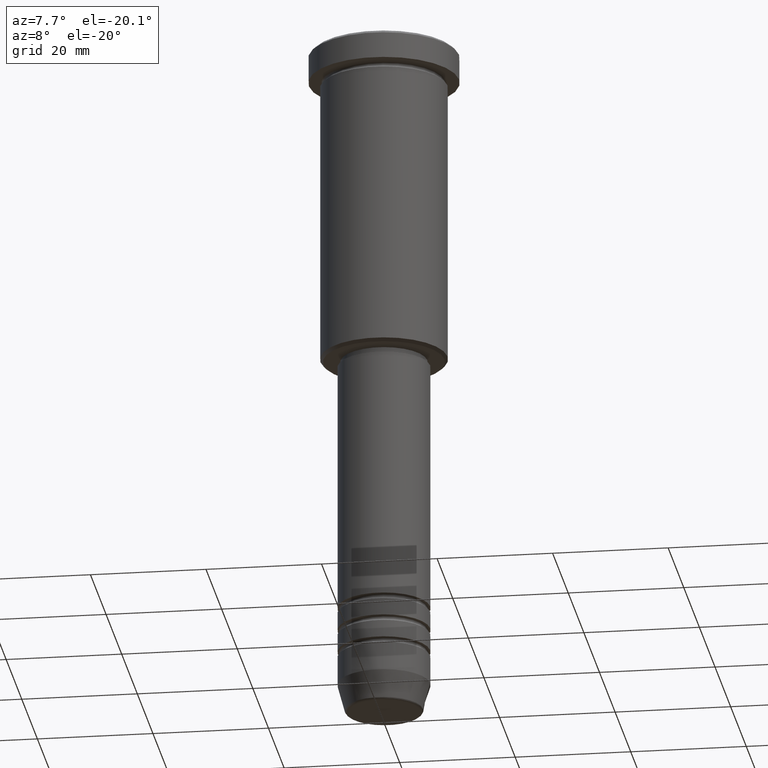
[diagram: clean part render]
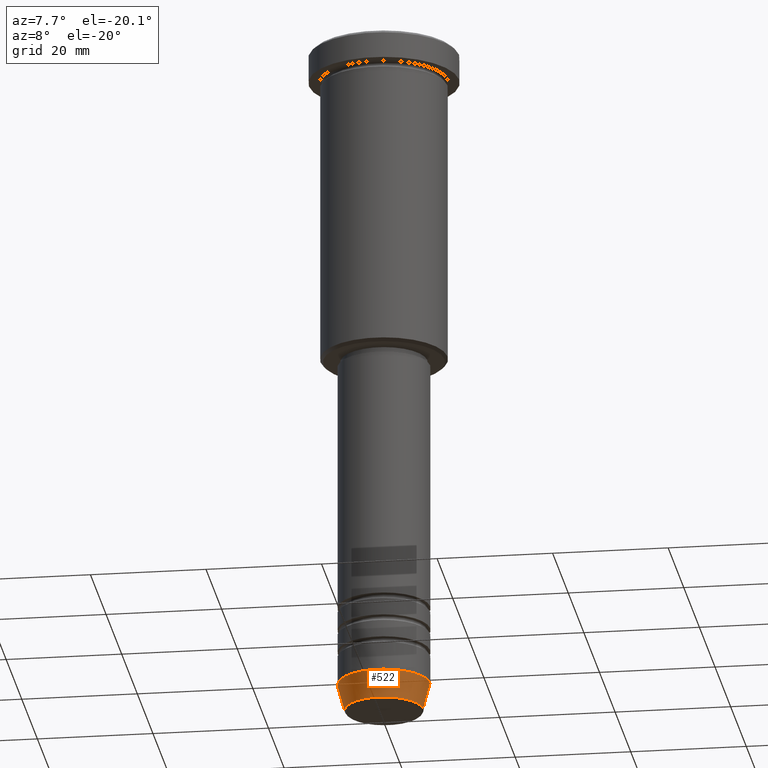
[diagram: same view with one face highlighted and labeled with its STEP entity id]
A machine part, auxiliary view. The second image highlights one B-rep face of the part: STEP entity #522.
In plain terms, the highlighted conical surface has half-angle 15 deg.
Its self-contained STEP definition (entity closure, byte-faithful):
#49 = EDGE_CURVE ( 'NONE', #130, #683, #735, .T. ) ;
#88 = FACE_OUTER_BOUND ( 'NONE', #728, .T. ) ;
#94 = DIRECTION ( 'NONE',  ( -0.2588190451025214611, 3.169619151431774186E-17, 0.9659258262890679791 ) ) ;
#130 = VERTEX_POINT ( 'NONE', #808 ) ;
#158 = DIRECTION ( 'NONE',  ( -0.000000000000000000, -0.000000000000000000, 1.000000000000000000 ) ) ;
#190 = DIRECTION ( 'NONE',  ( 1.000000000000000000, 0.000000000000000000, 0.000000000000000000 ) ) ;
#205 = CIRCLE ( 'NONE', #873, 6.759553456999436882 ) ;
#240 = ORIENTED_EDGE ( 'NONE', *, *, #1099, .T. ) ;
#268 = EDGE_CURVE ( 'NONE', #1107, #130, #1049, .T. ) ;
#342 = CARTESIAN_POINT ( 'NONE',  ( 8.000000000000000000, 0.000000000000000000, -114.9999999999999858 ) ) ;
#356 = EDGE_CURVE ( 'NONE', #969, #683, #781, .T. ) ;
#455 = AXIS2_PLACEMENT_3D ( 'NONE', #1105, #1036, #190 ) ;
#493 = AXIS2_PLACEMENT_3D ( 'NONE', #973, #158, #979 ) ;
#522 = ADVANCED_FACE ( 'NONE', ( #88 ), #628, .T. ) ;
#599 = ORIENTED_EDGE ( 'NONE', *, *, #356, .T. ) ;
#628 = CONICAL_SURFACE ( 'NONE', #455, 8.000000000000000000, 0.2617993877991502405 ) ;
#639 = CARTESIAN_POINT ( 'NONE',  ( 6.759553456999436882, 0.000000000000000000, -119.6294095225512564 ) ) ;
#649 = VECTOR ( 'NONE', #1135, 1000.000000000000114 ) ;
#683 = VERTEX_POINT ( 'NONE', #758 ) ;
#728 = EDGE_LOOP ( 'NONE', ( #1150, #240, #599, #865 ) ) ;
#735 = CIRCLE ( 'NONE', #493, 8.000000000000000000 ) ;
#755 = CARTESIAN_POINT ( 'NONE',  ( 0.000000000000000000, 0.000000000000000000, -119.6294095225512564 ) ) ;
#758 = CARTESIAN_POINT ( 'NONE',  ( 8.000000000000000000, 0.000000000000000000, -114.9999999999999858 ) ) ;
#781 = LINE ( 'NONE', #342, #649 ) ;
#808 = CARTESIAN_POINT ( 'NONE',  ( -8.000000000000000000, 9.797174393178825657E-16, -114.9999999999999858 ) ) ;
#861 = CARTESIAN_POINT ( 'NONE',  ( -8.000000000000000000, 9.797174393178825657E-16, -114.9999999999999858 ) ) ;
#865 = ORIENTED_EDGE ( 'NONE', *, *, #49, .F. ) ;
#867 = DIRECTION ( 'NONE',  ( -0.000000000000000000, -0.000000000000000000, 1.000000000000000000 ) ) ;
#873 = AXIS2_PLACEMENT_3D ( 'NONE', #755, #867, #1120 ) ;
#969 = VERTEX_POINT ( 'NONE', #639 ) ;
#973 = CARTESIAN_POINT ( 'NONE',  ( 0.000000000000000000, 0.000000000000000000, -114.9999999999999858 ) ) ;
#979 = DIRECTION ( 'NONE',  ( 1.000000000000000000, 0.000000000000000000, 0.000000000000000000 ) ) ;
#1036 = DIRECTION ( 'NONE',  ( -0.000000000000000000, -0.000000000000000000, 1.000000000000000000 ) ) ;
#1039 = CARTESIAN_POINT ( 'NONE',  ( -6.759553456999437770, 9.037619948979306213E-16, -119.6294095225512564 ) ) ;
#1049 = LINE ( 'NONE', #861, #1096 ) ;
#1096 = VECTOR ( 'NONE', #94, 1000.000000000000114 ) ;
#1099 = EDGE_CURVE ( 'NONE', #1107, #969, #205, .T. ) ;
#1105 = CARTESIAN_POINT ( 'NONE',  ( 0.000000000000000000, 0.000000000000000000, -114.9999999999999858 ) ) ;
#1107 = VERTEX_POINT ( 'NONE', #1039 ) ;
#1120 = DIRECTION ( 'NONE',  ( 1.000000000000000000, 0.000000000000000000, 0.000000000000000000 ) ) ;
#1135 = DIRECTION ( 'NONE',  ( 0.2588190451025214611, 0.000000000000000000, 0.9659258262890679791 ) ) ;
#1150 = ORIENTED_EDGE ( 'NONE', *, *, #268, .F. ) ;